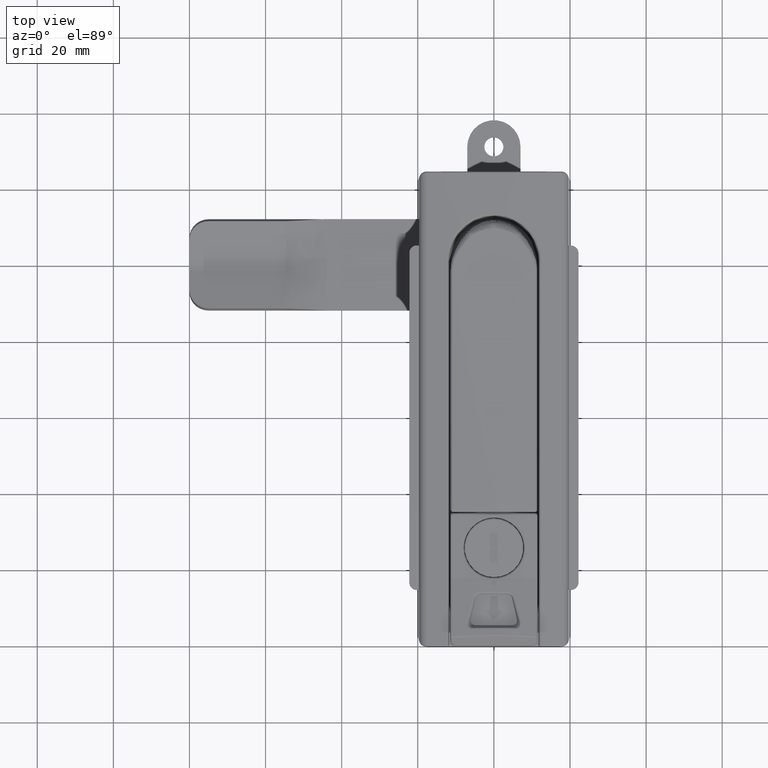
[diagram: clean part render]
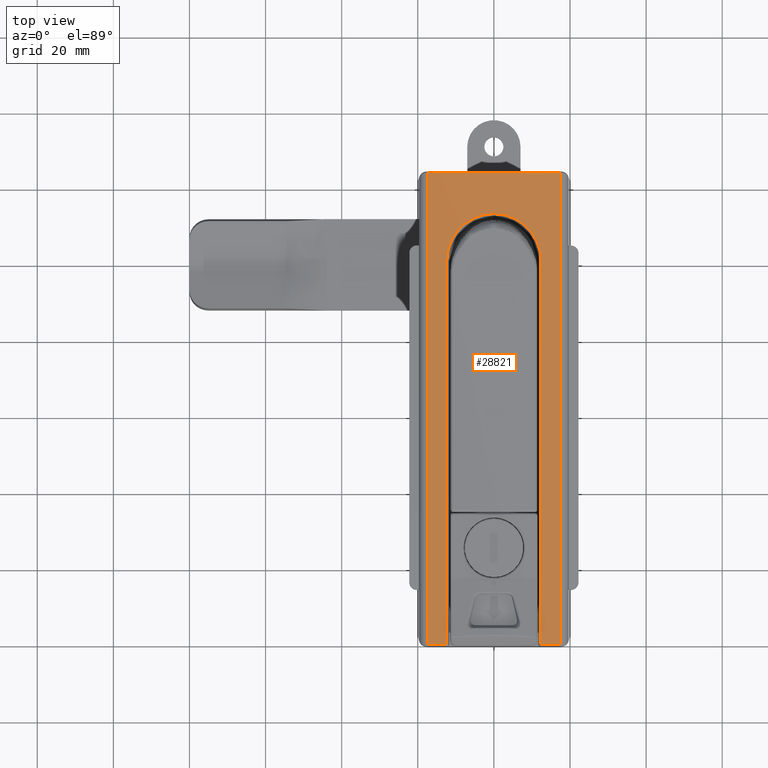
[diagram: same view with one face highlighted and labeled with its STEP entity id]
A machine part, top view. The second image highlights one B-rep face of the part: STEP entity #28821.
In plain terms, the highlighted cylindrical surface (partial cylindrical patch) has radius 135 mm, axis along (0, 1, -0).
Its self-contained STEP definition (entity closure, byte-faithful):
#459=CYLINDRICAL_SURFACE('',#30772,135.);
#1547=CIRCLE('',#30513,135.);
#1558=CIRCLE('',#30527,135.);
#1567=CIRCLE('',#30539,135.);
#2433=LINE('',#41385,#4205);
#2435=LINE('',#41388,#4207);
#2447=LINE('',#41422,#4219);
#2557=LINE('',#42627,#4329);
#4205=VECTOR('',#33082,124.);
#4207=VECTOR('',#33086,124.);
#4219=VECTOR('',#33124,100.95);
#4329=VECTOR('',#33606,100.95);
#6494=FACE_OUTER_BOUND('',#8267,.T.);
#8267=EDGE_LOOP('',(#20174,#20175,#20176,#20177,#20178,#20179,#20180,#20181,
#20182));
#9952=B_SPLINE_CURVE_WITH_KNOTS('',3,(#42557,#42558,#42559,#42560,#42561,
#42562,#42563,#42564,#42565,#42566,#42567,#42568,#42569),.UNSPECIFIED.,
 .F.,.F.,(4,3,3,3,4),(0.,0.25,0.375,0.46875,0.5),.UNSPECIFIED.);
#9953=B_SPLINE_CURVE_WITH_KNOTS('',3,(#42572,#42573,#42574,#42575,#42576,
#42577,#42578,#42579,#42580,#42581,#42582),.UNSPECIFIED.,.F.,.F.,(4,2,1,
2,2,4),(0.5,0.53125,0.5625,0.625,0.75,1.),.UNSPECIFIED.);
#11805=VERTEX_POINT('',#40717);
#11807=VERTEX_POINT('',#40723);
#11813=VERTEX_POINT('',#40900);
#11815=VERTEX_POINT('',#40906);
#11824=VERTEX_POINT('',#41222);
#11826=VERTEX_POINT('',#41228);
#11838=VERTEX_POINT('',#41421);
#11980=VERTEX_POINT('',#42556);
#11981=VERTEX_POINT('',#42570);
#14820=EDGE_CURVE('',#11805,#11807,#1547,.T.);
#14835=EDGE_CURVE('',#11815,#11813,#1558,.T.);
#14848=EDGE_CURVE('',#11824,#11826,#1567,.T.);
#14855=EDGE_CURVE('',#11826,#11815,#2433,.T.);
#14857=EDGE_CURVE('',#11807,#11824,#2435,.T.);
#14875=EDGE_CURVE('',#11813,#11838,#2447,.T.);
#15084=EDGE_CURVE('',#11838,#11980,#9952,.T.);
#15086=EDGE_CURVE('',#11980,#11981,#9953,.T.);
#15109=EDGE_CURVE('',#11981,#11805,#2557,.T.);
#20174=ORIENTED_EDGE('',*,*,#15109,.T.);
#20175=ORIENTED_EDGE('',*,*,#14820,.T.);
#20176=ORIENTED_EDGE('',*,*,#14857,.T.);
#20177=ORIENTED_EDGE('',*,*,#14848,.T.);
#20178=ORIENTED_EDGE('',*,*,#14855,.T.);
#20179=ORIENTED_EDGE('',*,*,#14835,.T.);
#20180=ORIENTED_EDGE('',*,*,#14875,.T.);
#20181=ORIENTED_EDGE('',*,*,#15084,.T.);
#20182=ORIENTED_EDGE('',*,*,#15086,.T.);
#28821=ADVANCED_FACE('',(#6494),#459,.T.);
#30513=AXIS2_PLACEMENT_3D('',#40725,#33014,#33015);
#30527=AXIS2_PLACEMENT_3D('',#40910,#33044,#33045);
#30539=AXIS2_PLACEMENT_3D('',#41230,#33068,#33069);
#30772=AXIS2_PLACEMENT_3D('',#42939,#33669,#33670);
#33014=DIRECTION('center_axis',(-1.,0.,0.));
#33015=DIRECTION('ref_axis',(0.,0.,-1.));
#33044=DIRECTION('center_axis',(-1.,0.,0.));
#33045=DIRECTION('ref_axis',(0.,0.,-1.));
#33068=DIRECTION('center_axis',(1.,0.,0.));
#33069=DIRECTION('ref_axis',(0.,0.,-1.));
#33082=DIRECTION('',(1.,0.,0.));
#33086=DIRECTION('',(-1.,0.,0.));
#33124=DIRECTION('',(-1.,0.,0.));
#33606=DIRECTION('',(1.,0.,0.));
#33669=DIRECTION('center_axis',(-1.,0.,0.));
#33670=DIRECTION('ref_axis',(0.,0.,-1.));
#40717=CARTESIAN_POINT('',(100.95,-12.414570829264,-36.8279674440002));
#40723=CARTESIAN_POINT('',(100.95,-17.5245283018868,-36.2577263657066));
#40725=CARTESIAN_POINT('Origin',(100.95,0.,97.6));
#40900=CARTESIAN_POINT('',(100.95,12.4145708292641,-36.8279674440003));
#40906=CARTESIAN_POINT('',(100.95,17.5245283018868,-36.2577263657066));
#40910=CARTESIAN_POINT('Origin',(100.95,0.,97.6));
#41222=CARTESIAN_POINT('',(-23.05,-17.5245283018868,-36.2577263657066));
#41228=CARTESIAN_POINT('',(-23.05,17.5245283018868,-36.2577263657066));
#41230=CARTESIAN_POINT('Origin',(-23.05,0.,97.6));
#41385=CARTESIAN_POINT('',(142.95,17.5245283018868,-36.2577263657066));
#41388=CARTESIAN_POINT('',(142.95,-17.5245283018868,-36.2577263657066));
#41421=CARTESIAN_POINT('',(-5.59452771365169E-14,12.4145708292641,-36.8279674440003));
#41422=CARTESIAN_POINT('',(142.95,12.4145708292641,-36.8279674440003));
#42556=CARTESIAN_POINT('',(-12.3815208910161,0.00892876737389948,-37.3999997047301));
#42557=CARTESIAN_POINT('Ctrl Pts',(-5.32907051820075E-14,12.4145708292642,
-36.8279674440002));
#42558=CARTESIAN_POINT('Ctrl Pts',(-3.26400127127538,12.4145708292642,-36.8279674440002));
#42559=CARTESIAN_POINT('Ctrl Pts',(-6.48005709727393,11.0623646015531,-36.9655577782612));
#42560=CARTESIAN_POINT('Ctrl Pts',(-8.76087378736528,8.77260102652353,-37.1146668749525));
#42561=CARTESIAN_POINT('Ctrl Pts',(-9.90128213241098,7.62771923900875,-37.1892214232982));
#42562=CARTESIAN_POINT('Ctrl Pts',(-10.789955416025,6.28454618606667,-37.2624358029108));
#42563=CARTESIAN_POINT('Ctrl Pts',(-11.4258466055127,4.74533191873151,-37.3165735741205));
#42564=CARTESIAN_POINT('Ctrl Pts',(-11.9027649976284,3.59092121823014,-37.3571769025278));
#42565=CARTESIAN_POINT('Ctrl Pts',(-12.2011835241893,2.41408008639696,-37.3837386939021));
#42566=CARTESIAN_POINT('Ctrl Pts',(-12.3211021851952,1.21517309378192,-37.3945308312605));
#42567=CARTESIAN_POINT('Ctrl Pts',(-12.3610750721971,0.815537429576903,
-37.39812821038));
#42568=CARTESIAN_POINT('Ctrl Pts',(-12.3812445274748,0.373973816876002,
-37.399975561009));
#42569=CARTESIAN_POINT('Ctrl Pts',(-12.3815208910161,0.0089287673738995,
-37.39999970473));
#42570=CARTESIAN_POINT('',(-5.45713455656082E-14,-12.414570829264,-36.8279674440003));
#42572=CARTESIAN_POINT('Ctrl Pts',(-12.3815208910161,0.0089287673738995,
-37.3999997047301));
#42573=CARTESIAN_POINT('Ctrl Pts',(-12.3817972545573,-0.356116282128203,
-37.4000238484511));
#42574=CARTESIAN_POINT('Ctrl Pts',(-12.3624333408552,-0.799127014340961,
-37.3982275394673));
#42575=CARTESIAN_POINT('Ctrl Pts',(-12.2843246101787,-1.59920239850401,
-37.3911204282395));
#42576=CARTESIAN_POINT('Ctrl Pts',(-12.1081401397533,-2.79073966205121,
-37.3752007179426));
#42577=CARTESIAN_POINT('Ctrl Pts',(-11.7548915460958,-3.9564149094171,-37.3441866954234));
#42578=CARTESIAN_POINT('Ctrl Pts',(-10.8123088611379,-6.25298103697036,
-37.2638098062271));
#42579=CARTESIAN_POINT('Ctrl Pts',(-9.91757151613457,-7.60960007638089,
-37.1903485431694));
#42580=CARTESIAN_POINT('Ctrl Pts',(-6.46570988208043,-11.0802850266549,
-36.9644959808281));
#42581=CARTESIAN_POINT('Ctrl Pts',(-3.27429037680719,-12.4145708292641,
-36.8279674440003));
#42582=CARTESIAN_POINT('Ctrl Pts',(-5.55111512312578E-14,-12.4145708292641,
-36.8279674440002));
#42627=CARTESIAN_POINT('',(142.95,-12.414570829264,-36.8279674440002));
#42939=CARTESIAN_POINT('Origin',(142.95,0.,97.6));